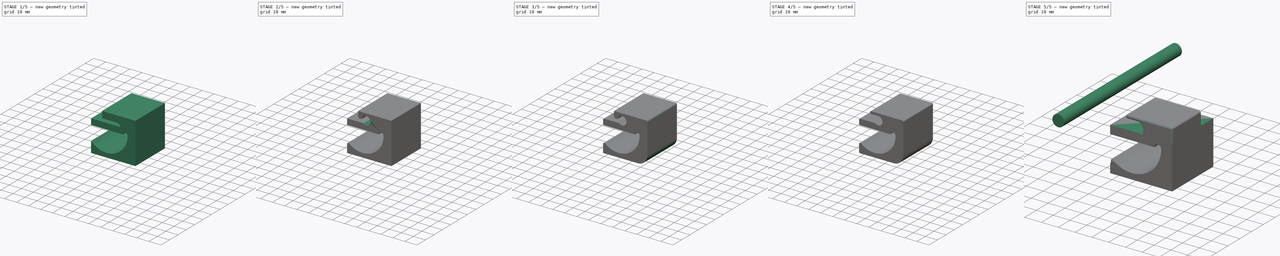
[diagram: build sequence overview — one tinted view per stage of 5, left to right]
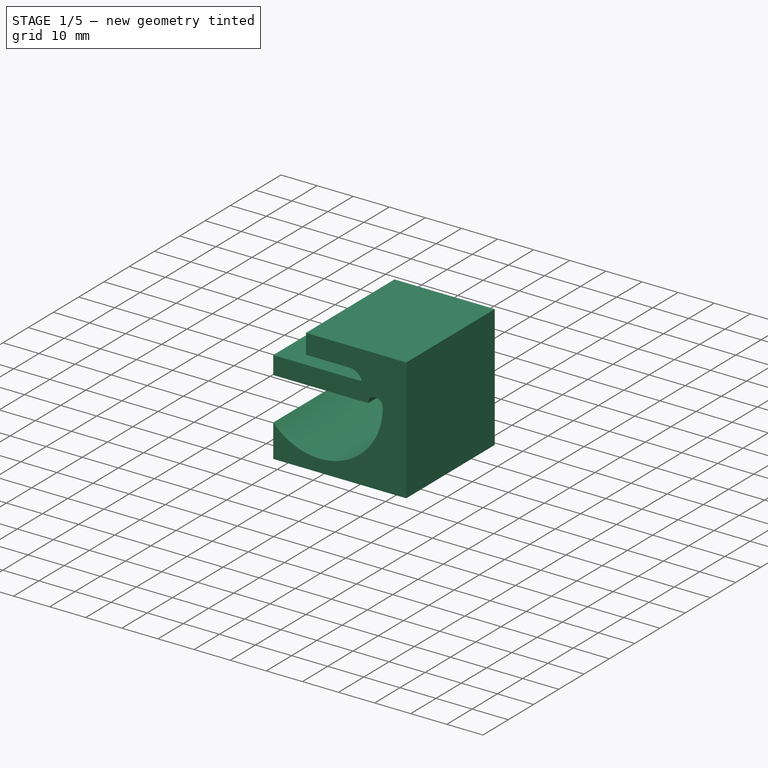
[diagram: stage 1 of 5 — iso view after this stage's code; geometry added in this stage tinted green]
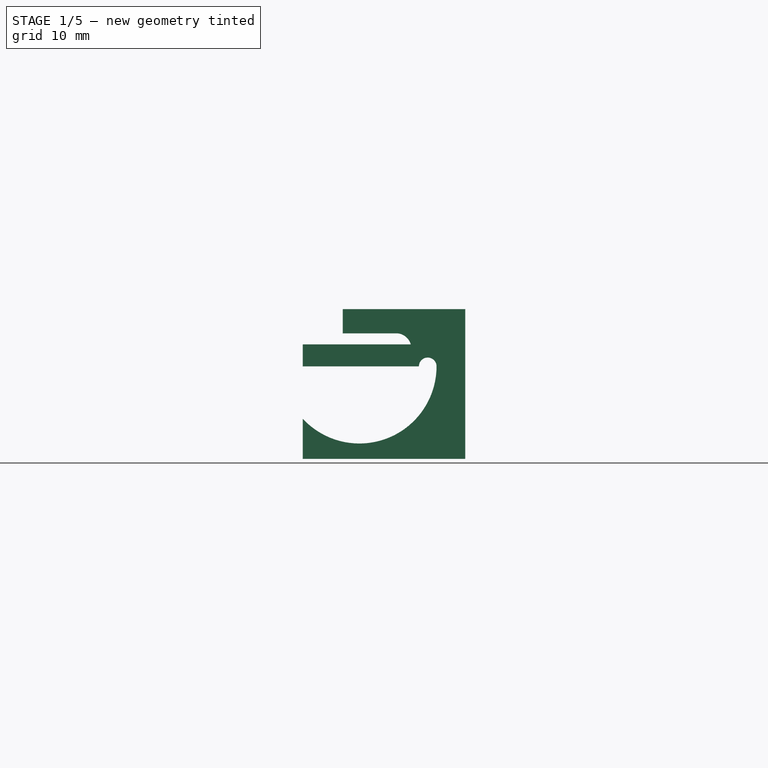
[diagram: stage 1 of 5 — front view after this stage's code; geometry added in this stage tinted green]
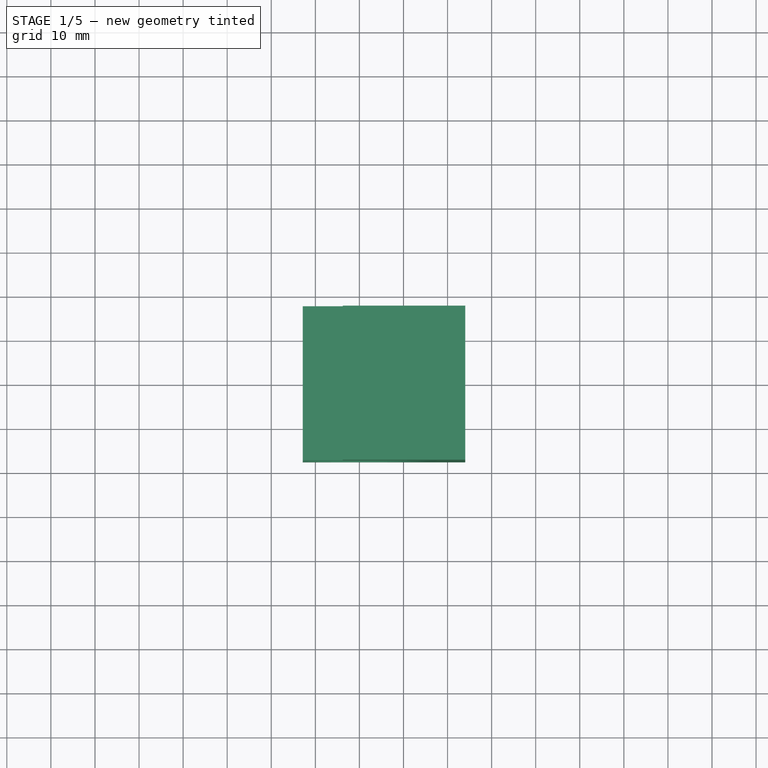
[diagram: stage 1 of 5 — top view after this stage's code; geometry added in this stage tinted green]
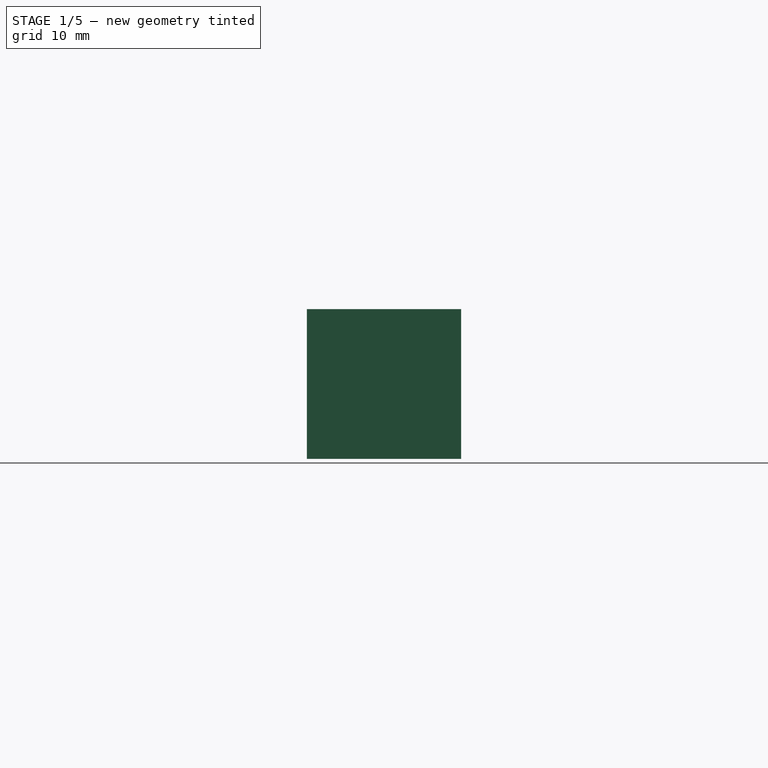
[diagram: stage 1 of 5 — right view after this stage's code; geometry added in this stage tinted green]
FCSTD DOCUMENT  (FreeCAD 0.16R)
Label: soporte cable
License: All rights reserved
LicenseURL: http://en.wikipedia.org/wiki/All_rights_reserved
objects: PartDesign::Fillet×13, Sketcher::SketchObject×8, PartDesign::Pad×5, Part::Feature×3, Part::Cut×3, PartDesign::Pocket×2, Part::MultiFuse×1
note: 42 computed .brp shape members not serialized (recipe doc carries the construction recipe); baked Part::Feature solids carry a one-line shape summary decoded from their .brp

FEATURE [Sketcher::SketchObject] Sketch
  Placement = pos=(0,0,0) rot=(1,0,0;1.5708rad)
  sketch-geometry (5):
    g0: LineSegment StartX=-13.5 StartY=0 StartZ=0 EndX=13.5 EndY=0 EndZ=0
    g1: ArcOfCircle CenterX=-15.5 CenterY=0 CenterZ=0 NormalX=0 NormalY=0 NormalZ=1 Radius=2 StartAngle=0 EndAngle=3.14159
    g2: ArcOfCircle CenterX=15.5 CenterY=0 CenterZ=0 NormalX=0 NormalY=0 NormalZ=1 Radius=2 StartAngle=0 EndAngle=3.14159
    g3: ArcOfCircle CenterX=0 CenterY=0 CenterZ=0 NormalX=0 NormalY=0 NormalZ=1 Radius=17.5 StartAngle=3.14159 EndAngle=6.28319
    g4: GeomPoint [constr] X=0 Y=-17.5 Z=0
  constraints (16):
    c: Symmetric(g0,g0,g-2)
    c: Coincident(g1,g0)
    c: Coincident(g2,g0)
    c: DistanceX(g0,g2) = 4
    c: DistanceX(g1,g0) = 4
    c: DistanceX(g1,g2) = 35
    c: PointOnObject(g1,g-1)
    c: PointOnObject(g1,g-1)
    c: PointOnObject(g0,g-1)
    c: PointOnObject(g2,g-1)
    c: PointOnObject(g2,g-1)
    c: Coincident(g3,g1)
    c: Coincident(g3,g2)
    c: PointOnObject(g4,g3)
    c: PointOnObject(g4,g-2)
    c: DistanceY(g4,g-1) = 17.5
FEATURE [PartDesign::Pad] Pad
  Length = 100
  Length2 = 100
  Midplane = true
  Placement = pos=(0,0,0) rot=(1,0,0;1.5708rad)
  Sketch = -> Sketch
  Type = 0
FEATURE [Sketcher::SketchObject] Sketch002
  Placement = pos=(0,0,0) rot=(1,0,0;1.5708rad)
  sketch-geometry (4):
    g0: LineSegment StartX=-12.8431 StartY=5 StartZ=0 EndX=24 EndY=5 EndZ=0
    g1: LineSegment StartX=24 StartY=5 StartZ=0 EndX=24 EndY=-21 EndZ=0
    g2: LineSegment StartX=24 StartY=-21 StartZ=0 EndX=-12.8431 EndY=-21 EndZ=0
    g3: LineSegment StartX=-12.8431 StartY=5 StartZ=0 EndX=-12.8431 EndY=-21 EndZ=0
  constraints (11):
    c: Coincident(g0,g1)
    c: Coincident(g1,g2)
    c: Horizontal(g0)
    c: Horizontal(g2)
    c: Vertical(g1)
    c: DistanceY(g-1,g0) = 5
    c: DistanceX(g-1,g0) = 24
    c: Coincident(g3,g0)
    c: Coincident(g3,g2)
    c: Vertical(g3)
    c: DistanceY(g1,g0) = 26
FEATURE [PartDesign::Pad] Pad003
  Length = 35
  Length2 = 100
  Midplane = true
  Placement = pos=(0,0,0) rot=(1,0,0;1.5708rad)
  Sketch = -> Sketch002
  Type = 0
FEATURE [Part::Feature] Pad004
  Placement = pos=(-35.8982,-2.58335e-06,-43.3415) rot=(1,0,0;1.5708rad)
  shape: bbox 35 x 100 x 19.5 mm, 6 faces (baked)
FEATURE [Part::Cut] Cut
  Base = -> Pad003
  Tool = -> Pad
FEATURE [Part::Feature] Pad005
  Placement = pos=(24.0598,-2.58335e-06,-9.99504) rot=(1,0,0;1.5708rad)
  shape: bbox 7 x 100 x 7 mm, 3 faces (baked)
FEATURE [Sketcher::SketchObject] Sketch003
  Placement = pos=(0,0,0) rot=(1,0,0;1.5708rad)
  sketch-geometry (7):
    g0: LineSegment StartX=24 StartY=4 StartZ=0 EndX=24 EndY=13 EndZ=0
    g1: LineSegment StartX=24 StartY=13 StartZ=0 EndX=-3.76856 EndY=13 EndZ=0
    g2: LineSegment StartX=-3.76856 StartY=13 StartZ=0 EndX=-3.76856 EndY=7.5 EndZ=0
    g3: LineSegment StartX=-3.76856 StartY=7.5 StartZ=0 EndX=8.32642 EndY=7.5 EndZ=0
    g4: LineSegment StartX=11.7884 StartY=4.03799 StartZ=0 EndX=11.7884 EndY=4 EndZ=0
    g5: LineSegment StartX=24 StartY=4 StartZ=0 EndX=11.7884 EndY=4 EndZ=0
    g6: ArcOfCircle CenterX=8.32642 CenterY=4.03799 CenterZ=0 NormalX=0 NormalY=0 NormalZ=1 Radius=3.46201 StartAngle=0 EndAngle=1.5708
  constraints (17):
    c: Vertical(g0)
    c: Coincident(g0,g1)
    c: Horizontal(g1)
    c: Coincident(g1,g2)
    c: Vertical(g2)
    c: DistanceY(g-1,g0) = 4
    c: DistanceX(g-1,g0) = 24
    c: DistanceY(g-1,g0) = 13
    c: Coincident(g3,g2)
    c: Horizontal(g3)
    c: Vertical(g4)
    c: Horizontal(g5)
    c: Tangent(g4,g6) = 1.5708
    c: Tangent(g3,g6) = 1.5708
    c: DistanceY(g-1,g2) = 7.5
    c: Coincident(g5,g0)
    c: Coincident(g5,g4)
FEATURE [PartDesign::Pad] Pad006
  Length = 35
  Length2 = 100
  Midplane = true
  Placement = pos=(0,0,0) rot=(1,0,0;1.5708rad)
  Sketch = -> Sketch003
  Type = 0
FEATURE [Part::MultiFuse] Fusion
  Shapes = -> [Pad006,Cut]
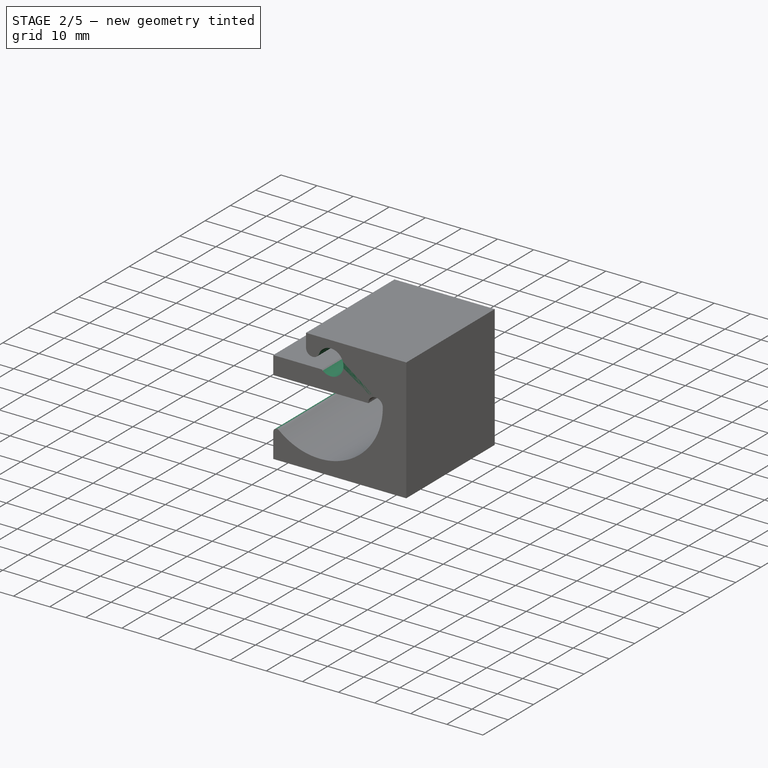
[diagram: stage 2 of 5 — iso view after this stage's code; geometry added in this stage tinted green]
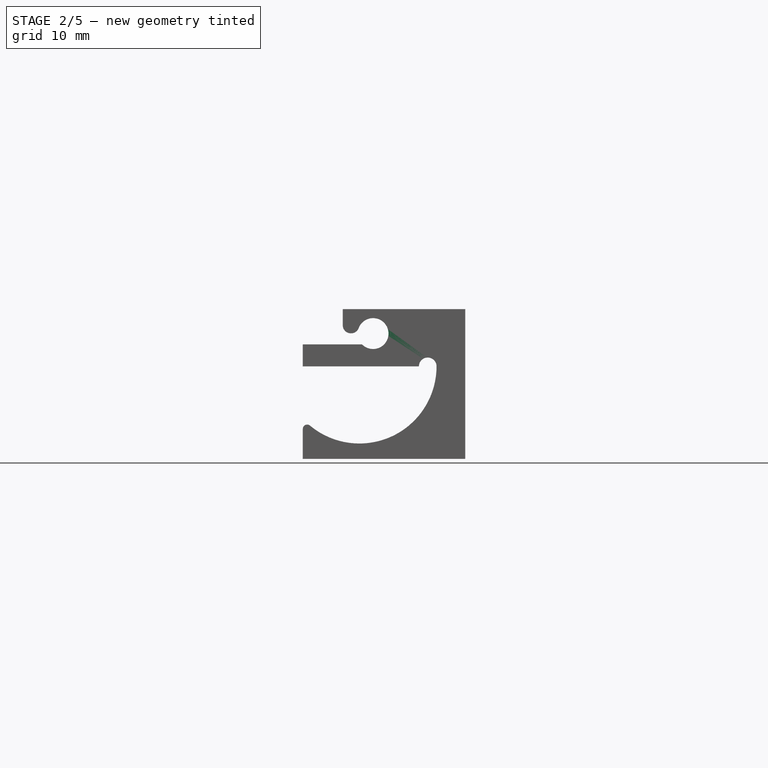
[diagram: stage 2 of 5 — front view after this stage's code; geometry added in this stage tinted green]
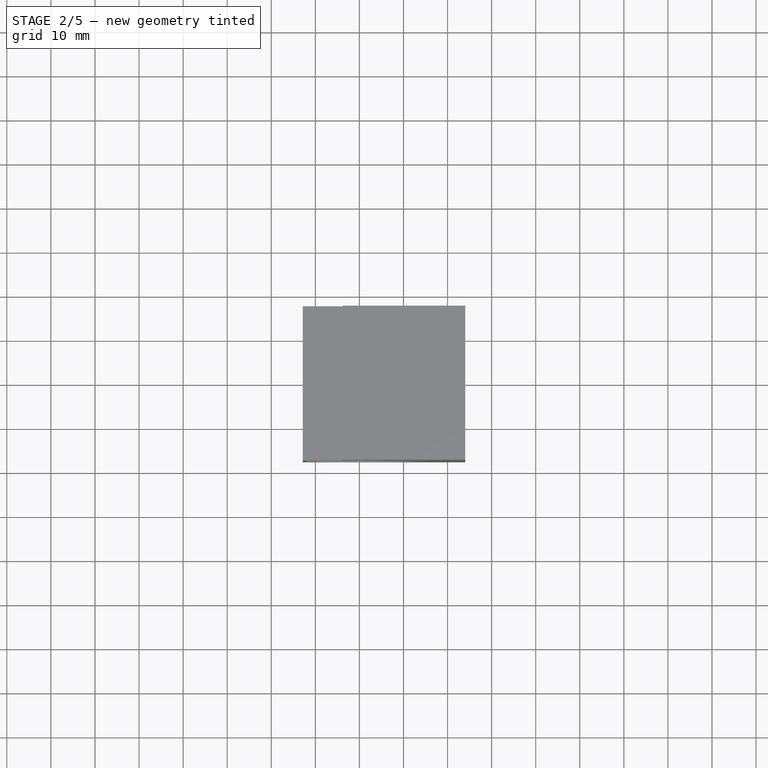
[diagram: stage 2 of 5 — top view after this stage's code; geometry added in this stage tinted green]
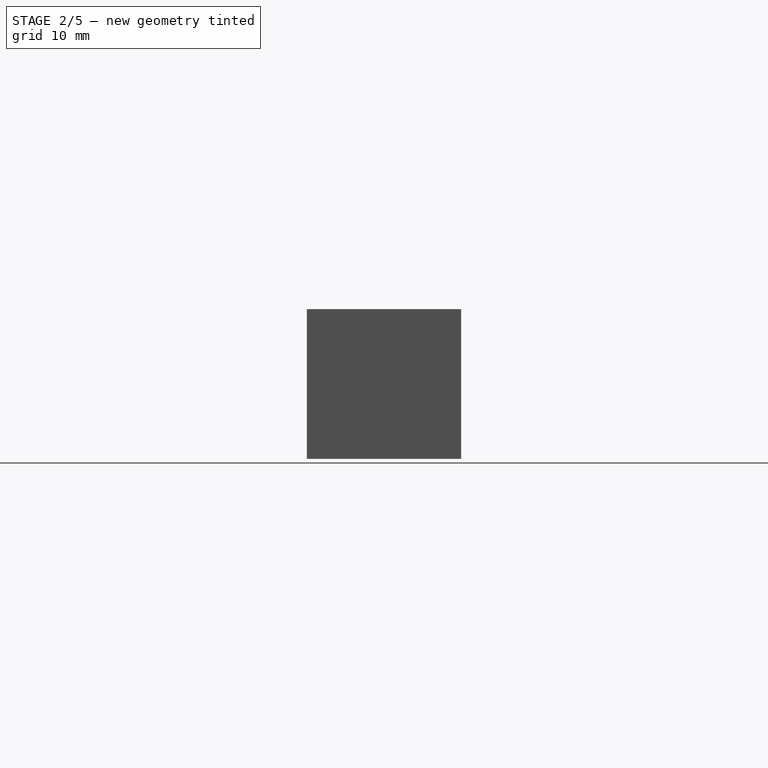
[diagram: stage 2 of 5 — right view after this stage's code; geometry added in this stage tinted green]
FEATURE [Part::Cut] Cut001
  Base = -> Fusion
  Tool = -> Pad005
FEATURE [PartDesign::Fillet] Fillet001
  Base = -> Cut001 [Edge39,Edge40]
  Radius = 1.8
FEATURE [Sketcher::SketchObject] Sketch004
  Placement = pos=(0,-17.5,0) rot=(1,0,0;1.5708rad)
  Support = -> Fillet001 [Face20]
  sketch-geometry (4):
    g0: LineSegment StartX=5.58791 StartY=10.6092 StartZ=0 EndX=13.2722 EndY=10.6092 EndZ=0
    g1: LineSegment StartX=13.2722 StartY=10.6092 StartZ=0 EndX=13.2722 EndY=2.47289 EndZ=0
    g2: LineSegment StartX=13.2722 StartY=2.47289 StartZ=0 EndX=5.58791 EndY=2.47289 EndZ=0
    g3: LineSegment StartX=5.58791 StartY=2.47289 StartZ=0 EndX=5.58791 EndY=10.6092 EndZ=0
  constraints (8):
    c: Coincident(g0,g1)
    c: Coincident(g1,g2)
    c: Coincident(g2,g3)
    c: Coincident(g3,g0)
    c: Horizontal(g0)
    c: Horizontal(g2)
    c: Vertical(g1)
    c: Vertical(g3)
FEATURE [PartDesign::Pad] Pad007
  Length = 35
  Length2 = 100
  Reversed = true
  Sketch = -> Sketch004
  Type = 0
FEATURE [Part::Cut] Cut002
  Base = -> Pad007
  Tool = -> Pad005
FEATURE [Sketcher::SketchObject] Sketch005
  Placement = pos=(0,-17.5,0) rot=(1,0,0;1.5708rad)
  Support = -> Cut002 [Face1]
FEATURE [PartDesign::Fillet] Fillet002
  Base = -> Cut002 [Edge44]
  Radius = 1
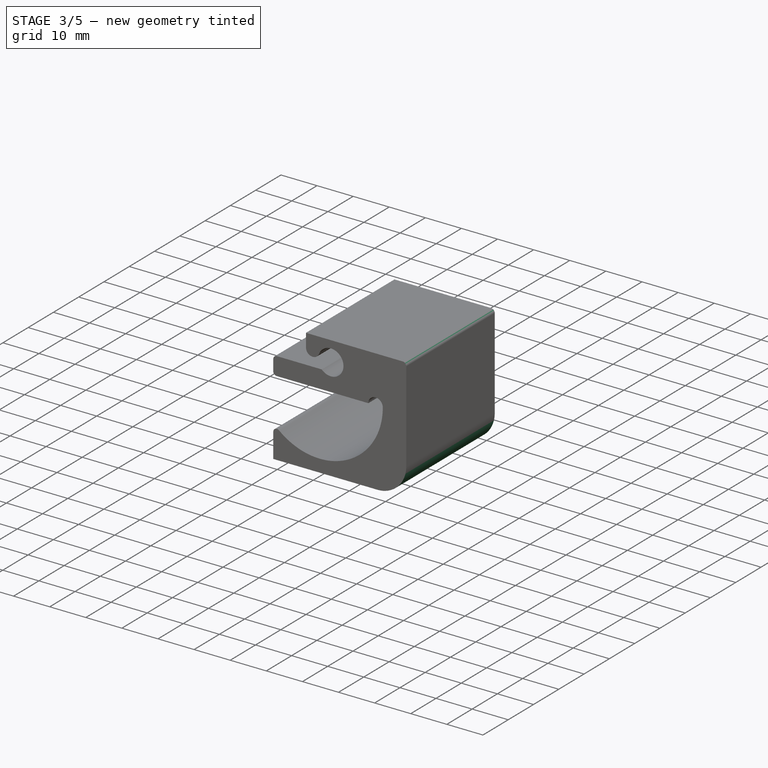
[diagram: stage 3 of 5 — iso view after this stage's code; geometry added in this stage tinted green]
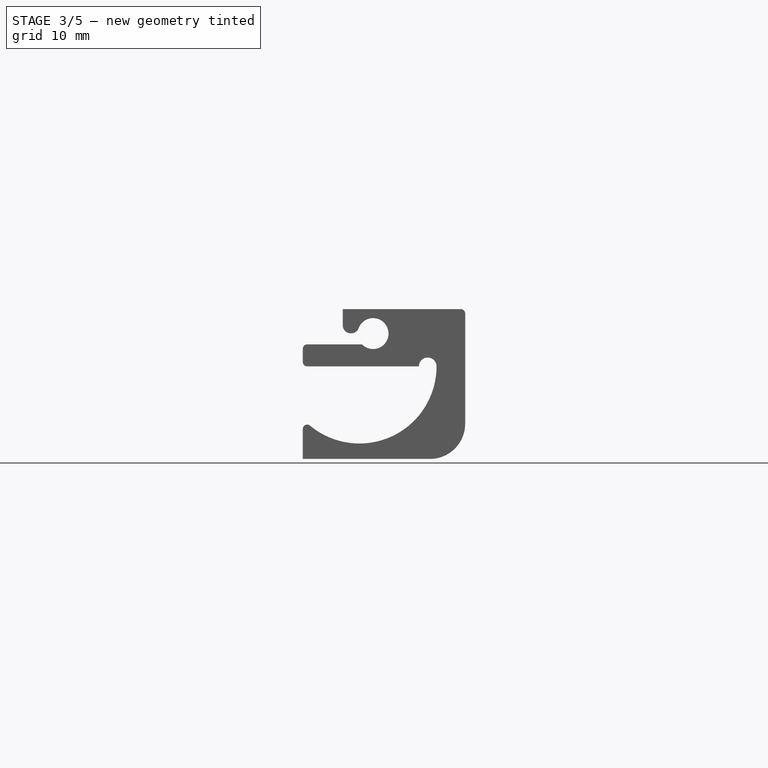
[diagram: stage 3 of 5 — front view after this stage's code; geometry added in this stage tinted green]
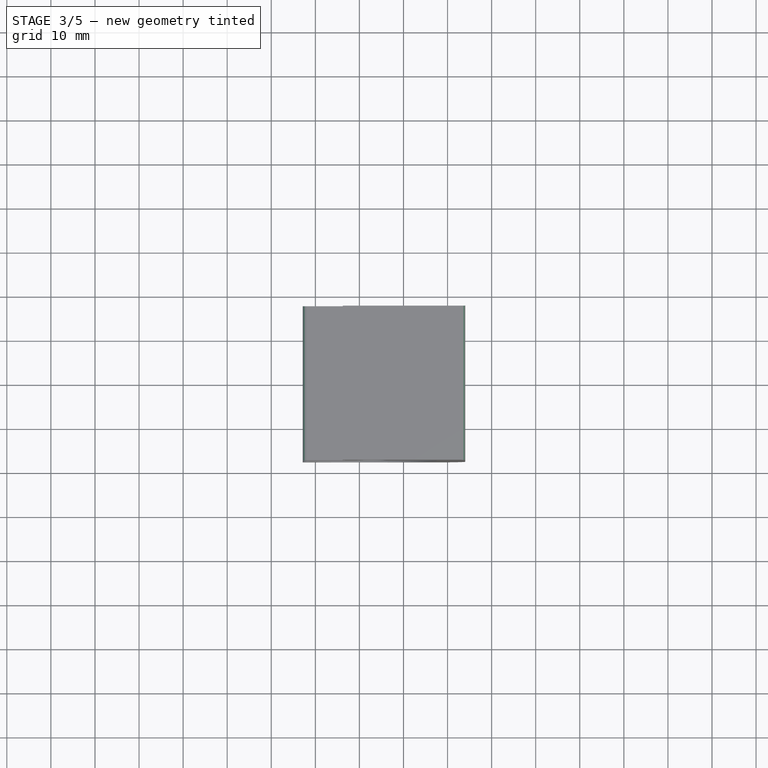
[diagram: stage 3 of 5 — top view after this stage's code; geometry added in this stage tinted green]
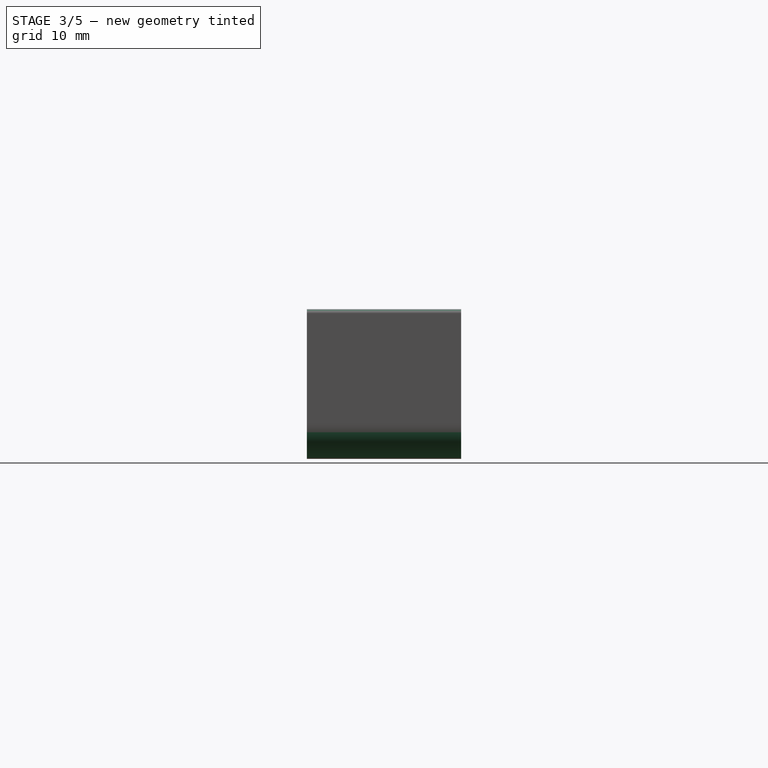
[diagram: stage 3 of 5 — right view after this stage's code; geometry added in this stage tinted green]
FEATURE [PartDesign::Fillet] Fillet003
  Base = -> Fillet002 [Edge28]
  Radius = 1
FEATURE [PartDesign::Fillet] Fillet004
  Base = -> Fillet003 [Edge28]
  Radius = 1
FEATURE [PartDesign::Fillet] Fillet005
  Base = -> Fillet004 [Edge47]
  Radius = 8
FEATURE [PartDesign::Fillet] Fillet006
  Base = -> Fillet005 [Edge30]
  Radius = 1
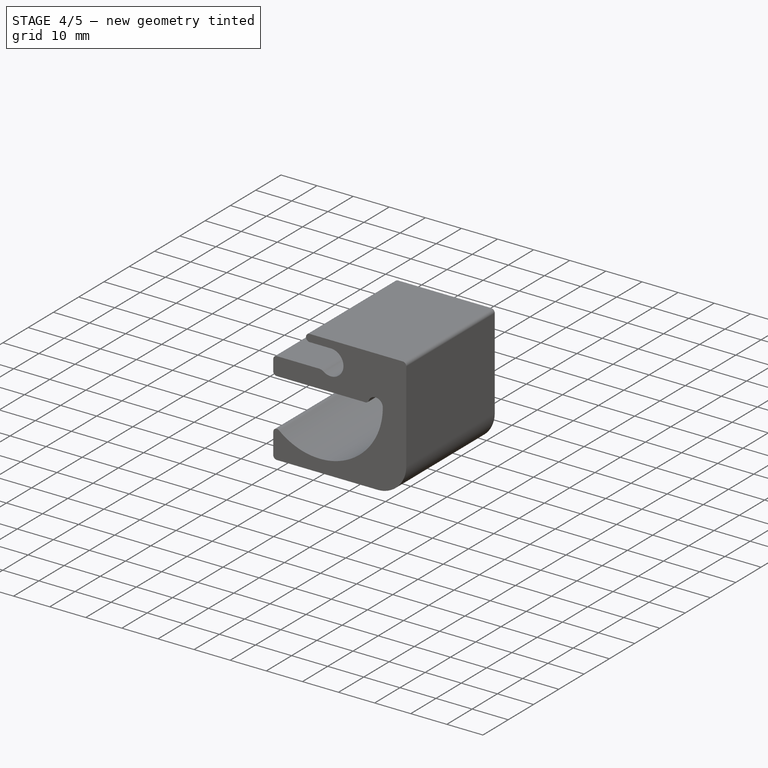
[diagram: stage 4 of 5 — iso view after this stage's code; geometry added in this stage tinted green]
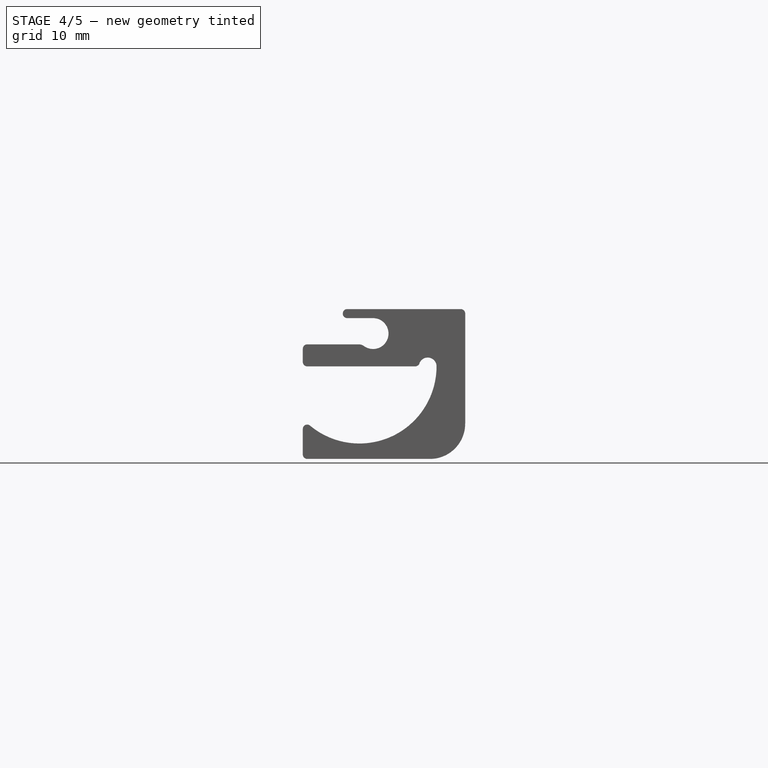
[diagram: stage 4 of 5 — front view after this stage's code; geometry added in this stage tinted green]
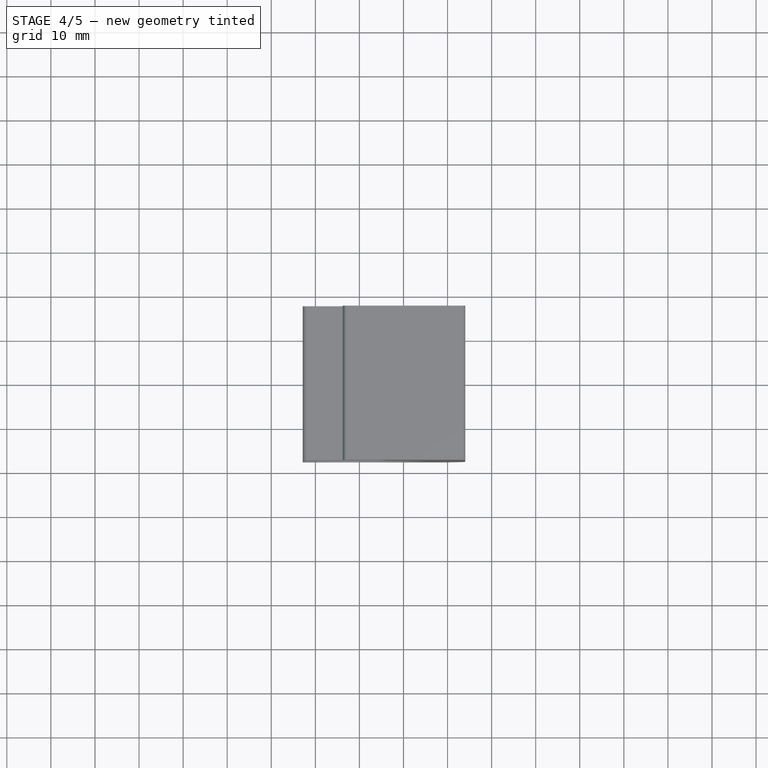
[diagram: stage 4 of 5 — top view after this stage's code; geometry added in this stage tinted green]
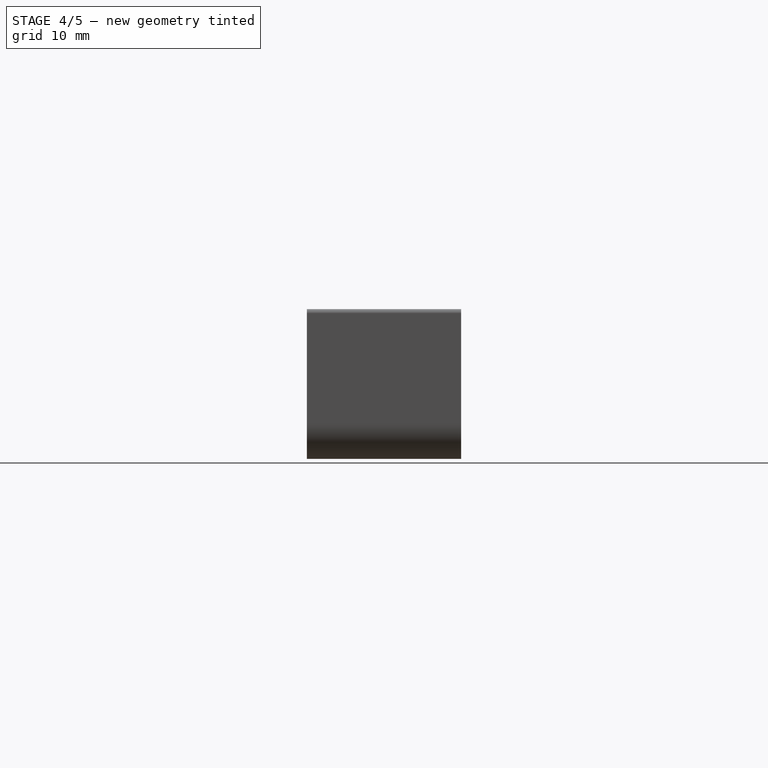
[diagram: stage 4 of 5 — right view after this stage's code; geometry added in this stage tinted green]
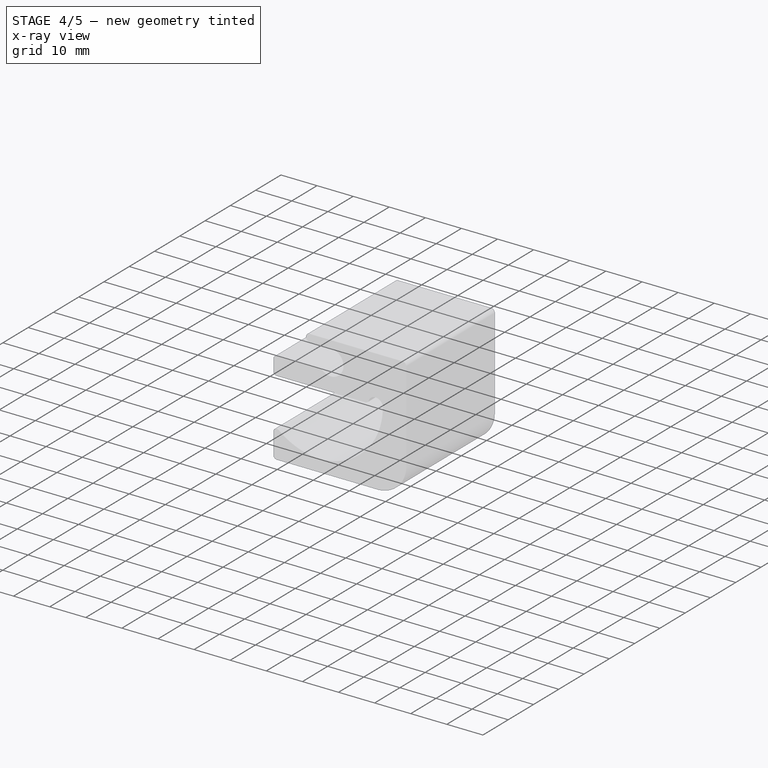
[diagram: stage 4 of 5 — x-ray composite at the iso view; earlier geometry ghosted, this stage's added geometry solid]
FEATURE [PartDesign::Fillet] Fillet007
  Base = -> Fillet006 [Edge33]
  Radius = 1
FEATURE [PartDesign::Fillet] Fillet008
  Base = -> Fillet007 [Edge44]
  Radius = 1
FEATURE [PartDesign::Fillet] Fillet009  label="Soporte Cable"
  Base = -> Fillet008 [Edge49]
  Radius = 2
FEATURE [Sketcher::SketchObject] Sketch006
  ExternalGeometry = -> [Fillet009]
  Placement = pos=(0,-17.5,0) rot=(1,0,0;1.5708rad)
  Support = -> Fillet009 [Face1]
  sketch-geometry (4):
    g0: LineSegment StartX=-5.30871 StartY=10.942 StartZ=0 EndX=3.10183 EndY=10.942 EndZ=0
    g1: LineSegment StartX=3.10183 StartY=10.942 StartZ=0 EndX=3.10183 EndY=7.44197 EndZ=0
    g2: LineSegment StartX=3.10183 StartY=7.44197 StartZ=0 EndX=-5.30871 EndY=7.44197 EndZ=0
    g3: LineSegment StartX=-5.30871 StartY=7.44197 StartZ=0 EndX=-5.30871 EndY=10.942 EndZ=0
  constraints (10):
    c: Coincident(g0,g1)
    c: Coincident(g1,g2)
    c: Coincident(g2,g3)
    c: Coincident(g3,g0)
    c: Horizontal(g0)
    c: Horizontal(g2)
    c: Vertical(g1)
    c: Vertical(g3)
    c: PointOnObject(g0,g-3)
    c: Coincident(g1,g-3)
FEATURE [PartDesign::Pocket] Pocket
  Length = 5
  Sketch = -> Sketch006
  Type = 1
FEATURE [PartDesign::Fillet] Fillet010
  Base = -> Pocket [Edge58,Edge56]
  Radius = 1
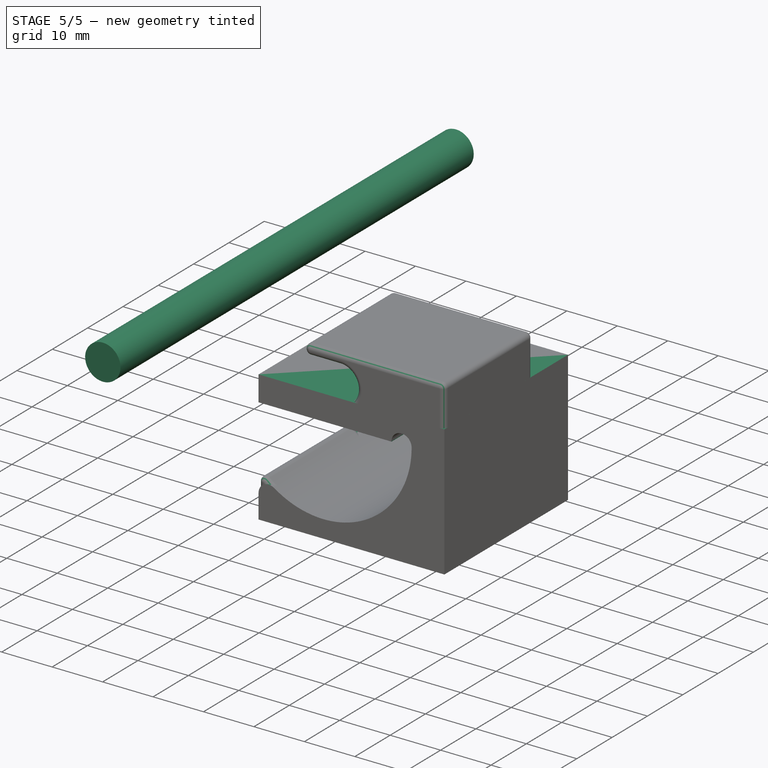
[diagram: stage 5 of 5 — iso view after this stage's code; geometry added in this stage tinted green]
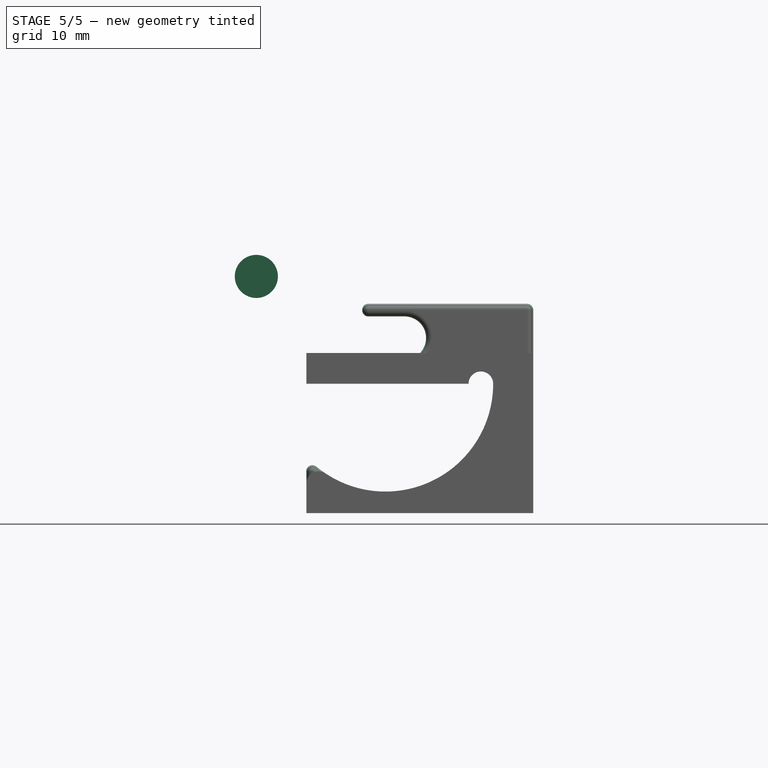
[diagram: stage 5 of 5 — front view after this stage's code; geometry added in this stage tinted green]
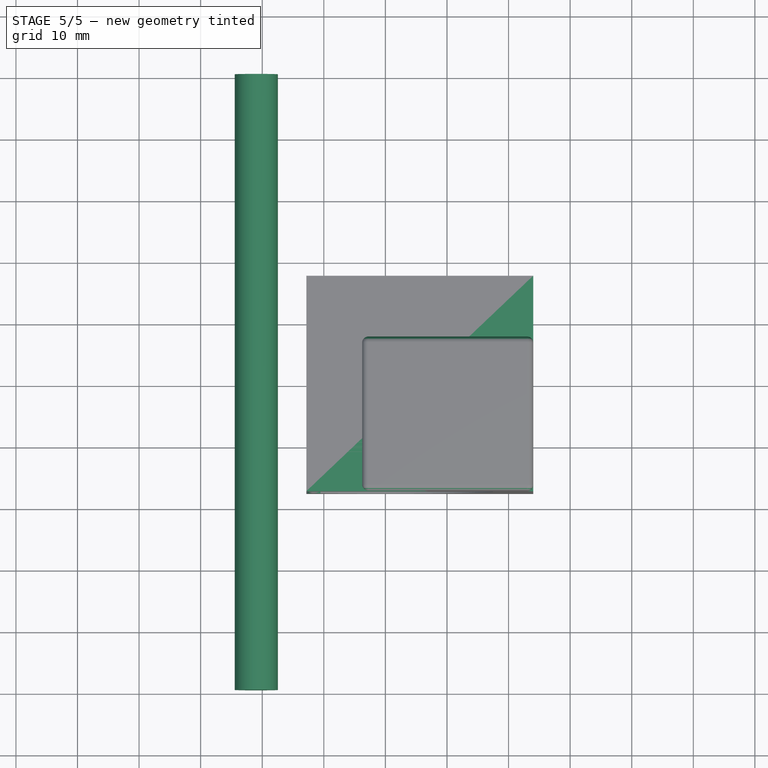
[diagram: stage 5 of 5 — top view after this stage's code; geometry added in this stage tinted green]
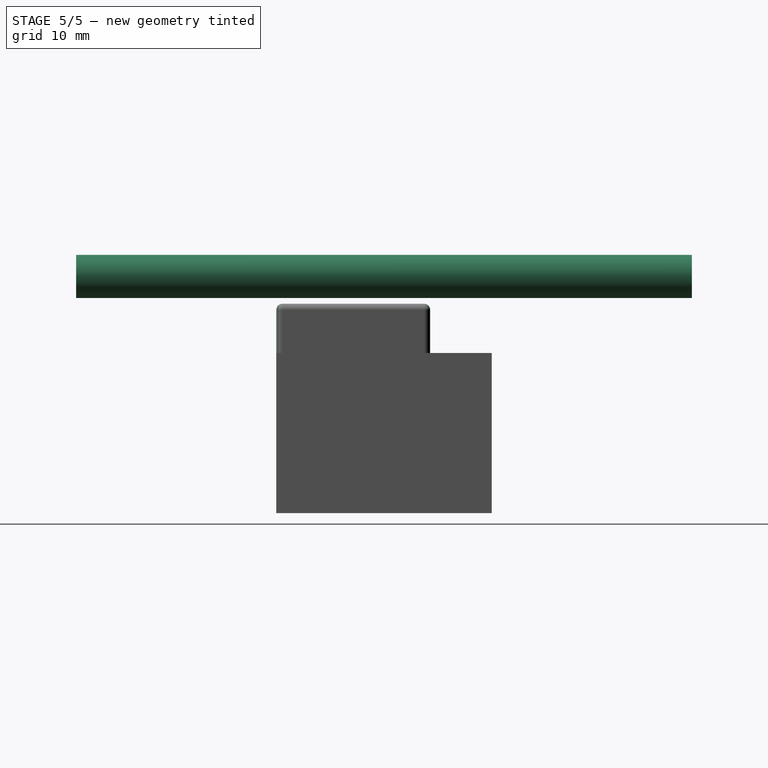
[diagram: stage 5 of 5 — right view after this stage's code; geometry added in this stage tinted green]
FEATURE [Sketcher::SketchObject] Sketch001
  Placement = pos=(0,0,0) rot=(1,0,0;1.5708rad)
  sketch-geometry (1):
    g0: Circle CenterX=-20.9579 CenterY=17.437 CenterZ=0 NormalX=0 NormalY=0 NormalZ=1 Radius=3.5
  constraints (1):
    c: Radius(g0) = 3.5
FEATURE [Part::Feature] Pad002
  Placement = pos=(-19.0421,50,-17.437) rot=(1,0,0;1.5708rad)
  shape: bbox 7 x 100 x 7 mm, 3 faces (baked)
FEATURE [PartDesign::Pad] Pad001
  Length = 100
  Length2 = 100
  Midplane = true
  Placement = pos=(0,0,0) rot=(1,0,0;1.5708rad)
  Sketch = -> Sketch001
  Type = 0
FEATURE [PartDesign::Fillet] Fillet
  Base = -> Cut [Edge23]
  Radius = 2
FEATURE [Sketcher::SketchObject] Sketch007
  ExternalGeometry = -> [Fillet010]
  Placement = pos=(0,0,13) rot=(0,0,1;0rad)
  Support = -> Fillet010 [Face2]
  sketch-geometry (4):
    g0: LineSegment StartX=38.519 StartY=7.5 StartZ=0 EndX=-15.8406 EndY=7.5 EndZ=0
    g1: LineSegment StartX=-15.8406 StartY=7.5 StartZ=0 EndX=-15.8406 EndY=25.7043 EndZ=0
    g2: LineSegment StartX=-15.8406 StartY=25.7043 StartZ=0 EndX=38.519 EndY=25.7043 EndZ=0
    g3: LineSegment StartX=38.519 StartY=25.7043 StartZ=0 EndX=38.519 EndY=7.5 EndZ=0
  constraints (9):
    c: Coincident(g0,g1)
    c: Coincident(g1,g2)
    c: Coincident(g2,g3)
    c: Coincident(g3,g0)
    c: Horizontal(g0)
    c: Horizontal(g2)
    c: Vertical(g1)
    c: Vertical(g3)
    c: DistanceY(g-3,g0) = 25
FEATURE [PartDesign::Pocket] Pocket001  label="Soporte Cable recortado"
  Length = 5
  Sketch = -> Sketch007
  Type = 1
FEATURE [PartDesign::Fillet] Fillet011
  Base = -> Pocket001 [Edge1,Edge2,Edge3,Edge4,Edge5,Edge6,Edge7,Edge8,Edge9,Edge10,Edge11,Edge12,Edge13,Edge14,Edge15,Edge16,Edge17,Edge18,Edge19,Edge20,Edge21,Edge22,Edge23,Edge24,Edge25]
  Radius = 1
FEATURE [PartDesign::Fillet] Fillet012
  Base = -> Fillet011 [Edge63,Edge113,Edge71,Edge114,Edge78,Edge84,Edge104,Edge110,Edge115,Edge108,Edge116,Edge101,Edge117,Edge97,Edge92,Edge118,Edge89,Edge119,Edge83,Edge76,Edge68,Edge112]
  Radius = 1
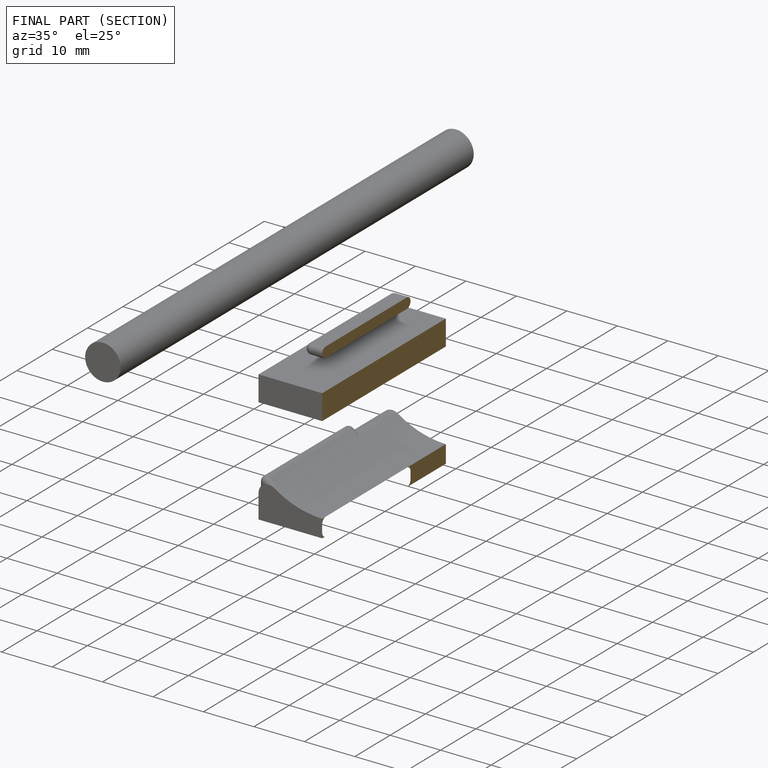
[diagram: finished part — half-section view (interior)]
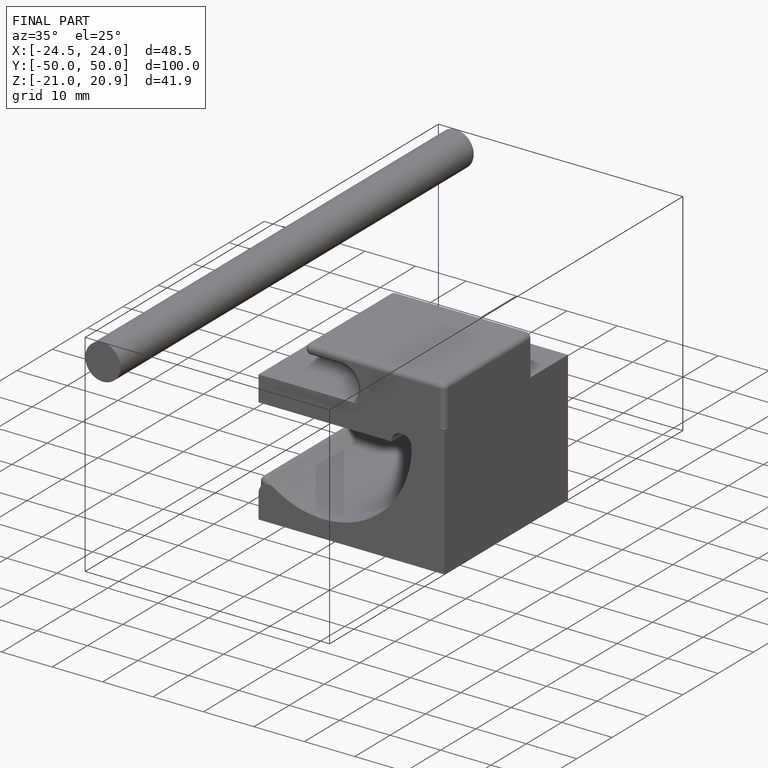
[diagram: finished part — iso view with bounding-box wireframe]
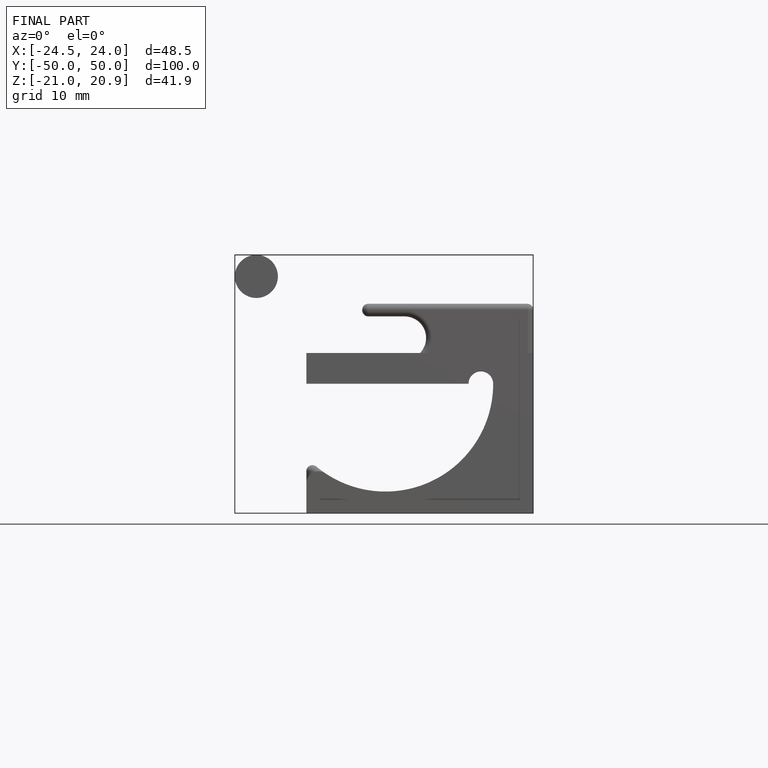
[diagram: finished part — front view with bounding-box wireframe]
